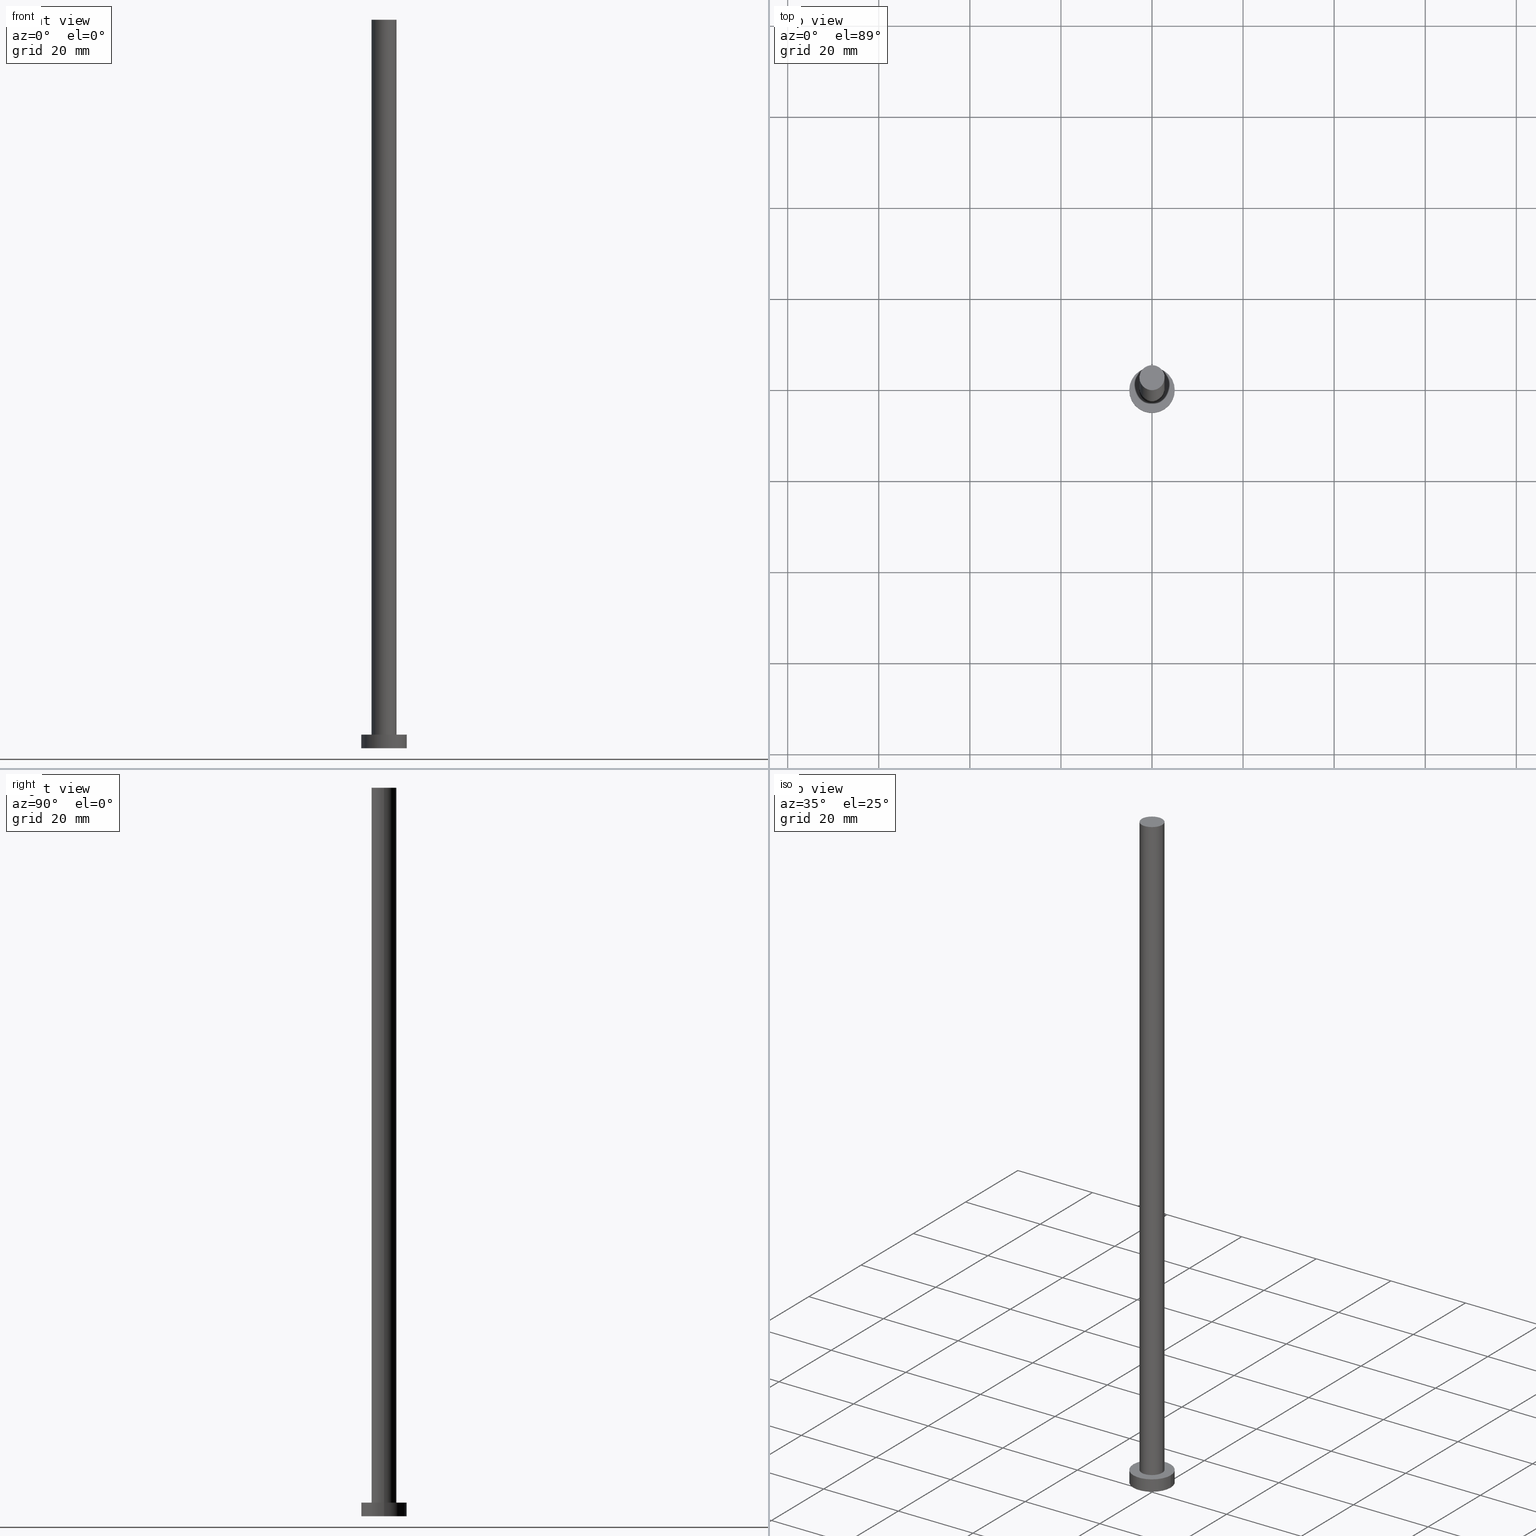
[diagram: canonical four-view strip — front | top / right | iso, engineering-drawing reading convention]
A machine part, canonical four-view strip (front | top / right | iso — engineering-drawing reading convention). The complete STEP part file that produces these views, byte-faithful:
ISO-10303-21;
HEADER;
FILE_DESCRIPTION (( 'STEP AP203' ),
    '1' );
FILE_NAME ('170a.STEP',
    '2023-02-13T14:34:03',
    ( '' ),
    ( '' ),
    'SwSTEP 2.0',
    'SolidWorks 2019',
    '' );
FILE_SCHEMA (( 'CONFIG_CONTROL_DESIGN' ));
ENDSEC;

DATA;
#1 = DIRECTION ( 'NONE',  ( 0.000000000000000000, 0.000000000000000000, 1.000000000000000000 ) ) ;
#2 = DIRECTION ( 'NONE',  ( 0.000000000000000000, 0.000000000000000000, 1.000000000000000000 ) ) ;
#3 = CC_DESIGN_DATE_AND_TIME_ASSIGNMENT ( #106, #11, ( #216 ) ) ;
#4 = EDGE_LOOP ( 'NONE', ( #43, #136 ) ) ;
#5 = CC_DESIGN_PERSON_AND_ORGANIZATION_ASSIGNMENT ( #44, #9, ( #216 ) ) ;
#6 = AXIS2_PLACEMENT_3D ( 'NONE', #91, #207, #252 ) ;
#7 = PERSON_AND_ORGANIZATION_ROLE ( 'design_supplier' ) ;
#8 = PERSON_AND_ORGANIZATION ( #135, #144 ) ;
#9 = PERSON_AND_ORGANIZATION_ROLE ( 'classification_officer' ) ;
#10 = ORIENTED_EDGE ( 'NONE', *, *, #114, .T. ) ;
#11 = DATE_TIME_ROLE ( 'classification_date' ) ;
#12 = ORIENTED_EDGE ( 'NONE', *, *, #46, .F. ) ;
#13 = PERSON_AND_ORGANIZATION_ROLE ( 'design_owner' ) ;
#14 = VERTEX_POINT ( 'NONE', #204 ) ;
#15 = VERTEX_POINT ( 'NONE', #51 ) ;
#16 = PERSON_AND_ORGANIZATION ( #135, #144 ) ;
#17 = ORIENTED_EDGE ( 'NONE', *, *, #250, .F. ) ;
#18 = CARTESIAN_POINT ( 'NONE',  ( 0.000000000000000000, 0.000000000000000000, 3.000000000000000000 ) ) ;
#19 = DIRECTION ( 'NONE',  ( 1.000000000000000000, 0.000000000000000000, 0.000000000000000000 ) ) ;
#20 = FACE_BOUND ( 'NONE', #4, .T. ) ;
#21 = FACE_OUTER_BOUND ( 'NONE', #189, .T. ) ;
#22 = DIRECTION ( 'NONE',  ( -0.000000000000000000, -0.000000000000000000, -1.000000000000000000 ) ) ;
#23 = CC_DESIGN_APPROVAL ( #85, ( #199 ) ) ;
#24 = APPROVAL ( #134, 'NEUR�EN�' ) ;
#25 = PERSON_AND_ORGANIZATION ( #135, #144 ) ;
#26 = DESIGN_CONTEXT ( 'detailed design', #84, 'design' ) ;
#27 = FACE_OUTER_BOUND ( 'NONE', #151, .T. ) ;
#28 = APPROVAL_STATUS ( 'not_yet_approved' ) ;
#29 = CARTESIAN_POINT ( 'NONE',  ( 0.000000000000000000, 0.000000000000000000, 160.0000000000000000 ) ) ;
#30 = APPROVAL_DATE_TIME ( #209, #85 ) ;
#31 = VECTOR ( 'NONE', #56, 1000.000000000000000 ) ;
#32 = CARTESIAN_POINT ( 'NONE',  ( -2.750000000000000000, 0.000000000000000000, 3.000000000000000000 ) ) ;
#33 = LOCAL_TIME ( 15, 34, 3.000000000000000000, #164 ) ;
#34 = DIRECTION ( 'NONE',  ( -0.000000000000000000, -0.000000000000000000, -1.000000000000000000 ) ) ;
#35 = PLANE ( 'NONE',  #243 ) ;
#36 = VECTOR ( 'NONE', #22, 1000.000000000000000 ) ;
#37 = DIRECTION ( 'NONE',  ( 0.000000000000000000, 0.000000000000000000, 1.000000000000000000 ) ) ;
#38 = DIRECTION ( 'NONE',  ( -0.000000000000000000, -0.000000000000000000, -1.000000000000000000 ) ) ;
#39 = ADVANCED_FACE ( 'NONE', ( #27 ), #133, .T. ) ;
#40 = CARTESIAN_POINT ( 'NONE',  ( 5.000000000000000000, 6.123233995736766282E-16, 0.000000000000000000 ) ) ;
#41 = ADVANCED_BREP_SHAPE_REPRESENTATION ( '170a', ( #161, #6 ), #63 ) ;
#42 = CC_DESIGN_PERSON_AND_ORGANIZATION_ASSIGNMENT ( #8, #7, ( #199 ) ) ;
#43 = ORIENTED_EDGE ( 'NONE', *, *, #240, .F. ) ;
#44 = PERSON_AND_ORGANIZATION ( #135, #144 ) ;
#45 = ORIENTED_EDGE ( 'NONE', *, *, #77, .T. ) ;
#46 = EDGE_CURVE ( 'NONE', #47, #146, #93, .T. ) ;
#47 = VERTEX_POINT ( 'NONE', #169 ) ;
#48 = DATE_AND_TIME ( #73, #155 ) ;
#49 = ORIENTED_EDGE ( 'NONE', *, *, #185, .T. ) ;
#50 = PERSON_AND_ORGANIZATION ( #135, #144 ) ;
#51 = CARTESIAN_POINT ( 'NONE',  ( 5.000000000000000000, 6.123233995736766282E-16, 3.000000000000000000 ) ) ;
#52 = APPLICATION_PROTOCOL_DEFINITION ( 'international standard', 'config_control_design', 1994, #84 ) ;
#53 = APPROVAL_PERSON_ORGANIZATION ( #154, #24, #68 ) ;
#54 = COORDINATED_UNIVERSAL_TIME_OFFSET ( 1, 0, .AHEAD. ) ;
#55 = DIRECTION ( 'NONE',  ( 0.000000000000000000, 0.000000000000000000, 1.000000000000000000 ) ) ;
#56 = DIRECTION ( 'NONE',  ( -0.000000000000000000, -0.000000000000000000, -1.000000000000000000 ) ) ;
#57 = FACE_OUTER_BOUND ( 'NONE', #165, .T. ) ;
#58 = LOCAL_TIME ( 15, 34, 3.000000000000000000, #148 ) ;
#59 = CARTESIAN_POINT ( 'NONE',  ( 0.000000000000000000, 0.000000000000000000, 0.000000000000000000 ) ) ;
#60 = DIRECTION ( 'NONE',  ( 1.000000000000000000, 0.000000000000000000, 0.000000000000000000 ) ) ;
#61 = SECURITY_CLASSIFICATION_LEVEL ( 'unclassified' ) ;
#62 = AXIS2_PLACEMENT_3D ( 'NONE', #251, #236, #78 ) ;
#63 =( GEOMETRIC_REPRESENTATION_CONTEXT ( 3 ) GLOBAL_UNCERTAINTY_ASSIGNED_CONTEXT ( ( #182 ) ) GLOBAL_UNIT_ASSIGNED_CONTEXT ( ( #174, #227, #187 ) ) REPRESENTATION_CONTEXT ( 'NONE', 'WORKASPACE' ) );
#64 = ORIENTED_EDGE ( 'NONE', *, *, #185, .F. ) ;
#65 = CALENDAR_DATE ( 2023, 13, 2 ) ;
#66 = CC_DESIGN_PERSON_AND_ORGANIZATION_ASSIGNMENT ( #16, #13, ( #238 ) ) ;
#67 = ORIENTED_EDGE ( 'NONE', *, *, #46, .T. ) ;
#68 = APPROVAL_ROLE ( '' ) ;
#69 = CALENDAR_DATE ( 2023, 13, 2 ) ;
#70 = CARTESIAN_POINT ( 'NONE',  ( -5.000000000000000000, 0.000000000000000000, 3.000000000000000000 ) ) ;
#71 = ORIENTED_EDGE ( 'NONE', *, *, #181, .F. ) ;
#72 = EDGE_CURVE ( 'NONE', #14, #228, #130, .T. ) ;
#73 = CALENDAR_DATE ( 2023, 13, 2 ) ;
#74 = AXIS2_PLACEMENT_3D ( 'NONE', #147, #206, #186 ) ;
#75 = CARTESIAN_POINT ( 'NONE',  ( 0.000000000000000000, 0.000000000000000000, 160.0000000000000000 ) ) ;
#76 = CARTESIAN_POINT ( 'NONE',  ( 0.000000000000000000, 0.000000000000000000, 160.0000000000000000 ) ) ;
#77 = EDGE_CURVE ( 'NONE', #146, #104, #241, .T. ) ;
#78 = DIRECTION ( 'NONE',  ( 1.000000000000000000, 0.000000000000000000, 0.000000000000000000 ) ) ;
#79 = VECTOR ( 'NONE', #248, 1000.000000000000000 ) ;
#80 = DIRECTION ( 'NONE',  ( 1.000000000000000000, 0.000000000000000000, -0.000000000000000000 ) ) ;
#81 = FACE_OUTER_BOUND ( 'NONE', #149, .T. ) ;
#82 = EDGE_LOOP ( 'NONE', ( #110, #88, #168, #246 ) ) ;
#83 = CALENDAR_DATE ( 2023, 13, 2 ) ;
#84 = APPLICATION_CONTEXT ( 'configuration controlled 3d designs of mechanical parts and assemblies' ) ;
#85 = APPROVAL ( #28, 'NEUR�EN�' ) ;
#86 = AXIS2_PLACEMENT_3D ( 'NONE', #101, #103, #60 ) ;
#87 = LOCAL_TIME ( 15, 34, 3.000000000000000000, #247 ) ;
#88 = ORIENTED_EDGE ( 'NONE', *, *, #145, .F. ) ;
#89 = VERTEX_POINT ( 'NONE', #210 ) ;
#90 = APPROVAL_ROLE ( '' ) ;
#91 = CARTESIAN_POINT ( 'NONE',  ( 0.000000000000000000, 0.000000000000000000, 0.000000000000000000 ) ) ;
#92 = CC_DESIGN_APPROVAL ( #215, ( #216 ) ) ;
#93 = LINE ( 'NONE', #115, #153 ) ;
#94 = CC_DESIGN_PERSON_AND_ORGANIZATION_ASSIGNMENT ( #113, #190, ( #199 ) ) ;
#95 = DIRECTION ( 'NONE',  ( 0.000000000000000000, 0.000000000000000000, 1.000000000000000000 ) ) ;
#96 = APPLICATION_CONTEXT ( 'configuration controlled 3d designs of mechanical parts and assemblies' ) ;
#97 = CARTESIAN_POINT ( 'NONE',  ( 0.000000000000000000, 0.000000000000000000, 160.0000000000000000 ) ) ;
#98 = CYLINDRICAL_SURFACE ( 'NONE', #167, 2.750000000000000000 ) ;
#99 = CC_DESIGN_PERSON_AND_ORGANIZATION_ASSIGNMENT ( #150, #234, ( #242 ) ) ;
#100 = DIRECTION ( 'NONE',  ( -1.000000000000000000, 0.000000000000000000, 0.000000000000000000 ) ) ;
#101 = CARTESIAN_POINT ( 'NONE',  ( 0.000000000000000000, 0.000000000000000000, 3.000000000000000000 ) ) ;
#102 = AXIS2_PLACEMENT_3D ( 'NONE', #138, #2, #139 ) ;
#103 = DIRECTION ( 'NONE',  ( 0.000000000000000000, 0.000000000000000000, 1.000000000000000000 ) ) ;
#104 = VERTEX_POINT ( 'NONE', #32 ) ;
#105 = APPROVAL_PERSON_ORGANIZATION ( #25, #215, #125 ) ;
#106 = DATE_AND_TIME ( #65, #87 ) ;
#107 = CIRCLE ( 'NONE', #102, 5.000000000000000000 ) ;
#108 = ORIENTED_EDGE ( 'NONE', *, *, #121, .T. ) ;
#109 = DIRECTION ( 'NONE',  ( 0.000000000000000000, 0.000000000000000000, 1.000000000000000000 ) ) ;
#110 = ORIENTED_EDGE ( 'NONE', *, *, #122, .F. ) ;
#111 = MECHANICAL_CONTEXT ( 'NONE', #96, 'mechanical' ) ;
#112 = DIRECTION ( 'NONE',  ( 1.000000000000000000, 0.000000000000000000, -0.000000000000000000 ) ) ;
#113 = PERSON_AND_ORGANIZATION ( #135, #144 ) ;
#114 = EDGE_CURVE ( 'NONE', #89, #47, #126, .T. ) ;
#115 = CARTESIAN_POINT ( 'NONE',  ( 2.750000000000000000, 3.367778697655221012E-16, 160.0000000000000000 ) ) ;
#116 = DIRECTION ( 'NONE',  ( -0.000000000000000000, -0.000000000000000000, -1.000000000000000000 ) ) ;
#117 = CARTESIAN_POINT ( 'NONE',  ( 0.000000000000000000, 0.000000000000000000, 3.000000000000000000 ) ) ;
#118 = DIRECTION ( 'NONE',  ( 0.000000000000000000, 0.000000000000000000, 1.000000000000000000 ) ) ;
#119 = DIRECTION ( 'NONE',  ( 1.000000000000000000, 0.000000000000000000, -0.000000000000000000 ) ) ;
#120 = CARTESIAN_POINT ( 'NONE',  ( 0.000000000000000000, 0.000000000000000000, 3.000000000000000000 ) ) ;
#121 = EDGE_CURVE ( 'NONE', #223, #228, #221, .T. ) ;
#122 = EDGE_CURVE ( 'NONE', #15, #223, #176, .T. ) ;
#123 = APPROVAL_DATE_TIME ( #202, #215 ) ;
#124 = CC_DESIGN_APPROVAL ( #24, ( #242 ) ) ;
#125 = APPROVAL_ROLE ( '' ) ;
#126 = CIRCLE ( 'NONE', #253, 2.750000000000000000 ) ;
#127 = AXIS2_PLACEMENT_3D ( 'NONE', #59, #1, #80 ) ;
#128 = ORIENTED_EDGE ( 'NONE', *, *, #201, .F. ) ;
#129 = APPROVAL_STATUS ( 'not_yet_approved' ) ;
#130 = LINE ( 'NONE', #70, #79 ) ;
#131 = ADVANCED_FACE ( 'NONE', ( #20, #140 ), #35, .T. ) ;
#132 = CALENDAR_DATE ( 2023, 13, 2 ) ;
#133 = PLANE ( 'NONE',  #232 ) ;
#134 = APPROVAL_STATUS ( 'not_yet_approved' ) ;
#135 = PERSON ( 'NEUR�EN�', 'NEUR�EN�', 'NEUR�EN�', ('NEUR�EN�'), ('NEUR�EN�'), ('NEUR�EN�') ) ;
#136 = ORIENTED_EDGE ( 'NONE', *, *, #77, .F. ) ;
#137 = DATE_AND_TIME ( #69, #163 ) ;
#138 = CARTESIAN_POINT ( 'NONE',  ( 0.000000000000000000, 0.000000000000000000, 3.000000000000000000 ) ) ;
#139 = DIRECTION ( 'NONE',  ( 1.000000000000000000, 0.000000000000000000, 0.000000000000000000 ) ) ;
#140 = FACE_OUTER_BOUND ( 'NONE', #183, .T. ) ;
#141 = CARTESIAN_POINT ( 'NONE',  ( -5.000000000000000000, 0.000000000000000000, 0.000000000000000000 ) ) ;
#142 = CC_DESIGN_DATE_AND_TIME_ASSIGNMENT ( #137, #229, ( #242 ) ) ;
#143 = ADVANCED_FACE ( 'NONE', ( #177 ), #178, .T. ) ;
#144 = ORGANIZATION ( 'NEUR�EN�', 'NEUR�EN�', '' ) ;
#145 = EDGE_CURVE ( 'NONE', #14, #15, #107, .T. ) ;
#146 = VERTEX_POINT ( 'NONE', #213 ) ;
#147 = CARTESIAN_POINT ( 'NONE',  ( 0.000000000000000000, 0.000000000000000000, 3.000000000000000000 ) ) ;
#148 = COORDINATED_UNIVERSAL_TIME_OFFSET ( 1, 0, .AHEAD. ) ;
#149 = EDGE_LOOP ( 'NONE', ( #64, #208, #108, #233 ) ) ;
#150 = PERSON_AND_ORGANIZATION ( #135, #144 ) ;
#151 = EDGE_LOOP ( 'NONE', ( #10, #225 ) ) ;
#152 = ORIENTED_EDGE ( 'NONE', *, *, #240, .T. ) ;
#153 = VECTOR ( 'NONE', #184, 1000.000000000000000 ) ;
#154 = PERSON_AND_ORGANIZATION ( #135, #144 ) ;
#155 = LOCAL_TIME ( 15, 34, 3.000000000000000000, #192 ) ;
#156 = DIRECTION ( 'NONE',  ( -0.000000000000000000, -0.000000000000000000, -1.000000000000000000 ) ) ;
#157 = ADVANCED_FACE ( 'NONE', ( #81 ), #254, .T. ) ;
#158 = AXIS2_PLACEMENT_3D ( 'NONE', #120, #37, #179 ) ;
#159 = PLANE ( 'NONE',  #127 ) ;
#160 = ADVANCED_FACE ( 'NONE', ( #57 ), #217, .T. ) ;
#161 = MANIFOLD_SOLID_BREP ( 'P�idat vysunut�m3', #188 ) ;
#162 = CIRCLE ( 'NONE', #180, 5.000000000000000000 ) ;
#163 = LOCAL_TIME ( 15, 34, 3.000000000000000000, #54 ) ;
#164 = COORDINATED_UNIVERSAL_TIME_OFFSET ( 1, 0, .AHEAD. ) ;
#165 = EDGE_LOOP ( 'NONE', ( #12, #172, #170, #152 ) ) ;
#166 = PRODUCT_RELATED_PRODUCT_CATEGORY ( 'detail', '', ( #238 ) ) ;
#167 = AXIS2_PLACEMENT_3D ( 'NONE', #76, #116, #194 ) ;
#168 = ORIENTED_EDGE ( 'NONE', *, *, #72, .T. ) ;
#169 = CARTESIAN_POINT ( 'NONE',  ( 2.750000000000000000, 3.367778697655221012E-16, 160.0000000000000000 ) ) ;
#170 = ORIENTED_EDGE ( 'NONE', *, *, #181, .T. ) ;
#171 = APPROVAL_DATE_TIME ( #48, #24 ) ;
#172 = ORIENTED_EDGE ( 'NONE', *, *, #114, .F. ) ;
#173 = DIRECTION ( 'NONE',  ( 1.000000000000000000, 0.000000000000000000, 0.000000000000000000 ) ) ;
#174 =( LENGTH_UNIT ( ) NAMED_UNIT ( * ) SI_UNIT ( .MILLI., .METRE. ) );
#175 = DIRECTION ( 'NONE',  ( 1.000000000000000000, 0.000000000000000000, 0.000000000000000000 ) ) ;
#176 = LINE ( 'NONE', #255, #31 ) ;
#177 = FACE_OUTER_BOUND ( 'NONE', #82, .T. ) ;
#178 = CYLINDRICAL_SURFACE ( 'NONE', #219, 5.000000000000000000 ) ;
#179 = DIRECTION ( 'NONE',  ( 1.000000000000000000, 0.000000000000000000, 0.000000000000000000 ) ) ;
#180 = AXIS2_PLACEMENT_3D ( 'NONE', #211, #214, #19 ) ;
#181 = EDGE_CURVE ( 'NONE', #89, #104, #197, .T. ) ;
#182 = UNCERTAINTY_MEASURE_WITH_UNIT (LENGTH_MEASURE( 1.000000000000000082E-05 ), #174, 'distance_accuracy_value', 'NONE');
#183 = EDGE_LOOP ( 'NONE', ( #203, #49 ) ) ;
#184 = DIRECTION ( 'NONE',  ( -0.000000000000000000, -0.000000000000000000, -1.000000000000000000 ) ) ;
#185 = EDGE_CURVE ( 'NONE', #15, #14, #198, .T. ) ;
#186 = DIRECTION ( 'NONE',  ( 1.000000000000000000, 0.000000000000000000, 0.000000000000000000 ) ) ;
#187 =( NAMED_UNIT ( * ) SI_UNIT ( $, .STERADIAN. ) SOLID_ANGLE_UNIT ( ) );
#188 = CLOSED_SHELL ( 'NONE', ( #231, #157, #143, #131, #193, #160, #39 ) ) ;
#189 = EDGE_LOOP ( 'NONE', ( #128, #249 ) ) ;
#190 = PERSON_AND_ORGANIZATION_ROLE ( 'creator' ) ;
#191 = CARTESIAN_POINT ( 'NONE',  ( 0.000000000000000000, 0.000000000000000000, 160.0000000000000000 ) ) ;
#192 = COORDINATED_UNIVERSAL_TIME_OFFSET ( 1, 0, .AHEAD. ) ;
#193 = ADVANCED_FACE ( 'NONE', ( #21 ), #159, .F. ) ;
#194 = DIRECTION ( 'NONE',  ( -1.000000000000000000, 0.000000000000000000, 0.000000000000000000 ) ) ;
#195 = DIRECTION ( 'NONE',  ( -1.000000000000000000, 0.000000000000000000, 0.000000000000000000 ) ) ;
#196 = CIRCLE ( 'NONE', #226, 2.750000000000000000 ) ;
#197 = LINE ( 'NONE', #237, #36 ) ;
#198 = CIRCLE ( 'NONE', #86, 5.000000000000000000 ) ;
#199 = PRODUCT_DEFINITION_FORMATION_WITH_SPECIFIED_SOURCE ( 'LIBOVOLN�', '', #238, .NOT_KNOWN. ) ;
#200 = APPROVAL_PERSON_ORGANIZATION ( #50, #85, #90 ) ;
#201 = EDGE_CURVE ( 'NONE', #228, #223, #162, .T. ) ;
#202 = DATE_AND_TIME ( #83, #33 ) ;
#203 = ORIENTED_EDGE ( 'NONE', *, *, #145, .T. ) ;
#204 = CARTESIAN_POINT ( 'NONE',  ( -5.000000000000000000, 0.000000000000000000, 3.000000000000000000 ) ) ;
#205 = SHAPE_DEFINITION_REPRESENTATION ( #222, #41 ) ;
#206 = DIRECTION ( 'NONE',  ( 0.000000000000000000, 0.000000000000000000, 1.000000000000000000 ) ) ;
#207 = DIRECTION ( 'NONE',  ( 0.000000000000000000, 0.000000000000000000, 1.000000000000000000 ) ) ;
#208 = ORIENTED_EDGE ( 'NONE', *, *, #122, .T. ) ;
#209 = DATE_AND_TIME ( #132, #58 ) ;
#210 = CARTESIAN_POINT ( 'NONE',  ( -2.750000000000000000, 0.000000000000000000, 160.0000000000000000 ) ) ;
#211 = CARTESIAN_POINT ( 'NONE',  ( 0.000000000000000000, 0.000000000000000000, 0.000000000000000000 ) ) ;
#212 = APPLICATION_PROTOCOL_DEFINITION ( 'international standard', 'config_control_design', 1994, #96 ) ;
#213 = CARTESIAN_POINT ( 'NONE',  ( 2.750000000000000000, 3.367778697655221012E-16, 3.000000000000000000 ) ) ;
#214 = DIRECTION ( 'NONE',  ( 0.000000000000000000, 0.000000000000000000, 1.000000000000000000 ) ) ;
#215 = APPROVAL ( #129, 'NEUR�EN�' ) ;
#216 = SECURITY_CLASSIFICATION ( '', '', #61 ) ;
#217 = CYLINDRICAL_SURFACE ( 'NONE', #244, 2.750000000000000000 ) ;
#218 = FACE_OUTER_BOUND ( 'NONE', #230, .T. ) ;
#219 = AXIS2_PLACEMENT_3D ( 'NONE', #18, #156, #100 ) ;
#220 = CC_DESIGN_SECURITY_CLASSIFICATION ( #216, ( #199 ) ) ;
#221 = CIRCLE ( 'NONE', #62, 5.000000000000000000 ) ;
#222 = PRODUCT_DEFINITION_SHAPE ( 'NONE', 'NONE',  #242 ) ;
#223 = VERTEX_POINT ( 'NONE', #40 ) ;
#224 = AXIS2_PLACEMENT_3D ( 'NONE', #117, #34, #195 ) ;
#225 = ORIENTED_EDGE ( 'NONE', *, *, #250, .T. ) ;
#226 = AXIS2_PLACEMENT_3D ( 'NONE', #97, #118, #175 ) ;
#227 =( NAMED_UNIT ( * ) PLANE_ANGLE_UNIT ( ) SI_UNIT ( $, .RADIAN. ) );
#228 = VERTEX_POINT ( 'NONE', #141 ) ;
#229 = DATE_TIME_ROLE ( 'creation_date' ) ;
#230 = EDGE_LOOP ( 'NONE', ( #17, #67, #45, #71 ) ) ;
#231 = ADVANCED_FACE ( 'NONE', ( #218 ), #98, .T. ) ;
#232 = AXIS2_PLACEMENT_3D ( 'NONE', #29, #109, #112 ) ;
#233 = ORIENTED_EDGE ( 'NONE', *, *, #72, .F. ) ;
#234 = PERSON_AND_ORGANIZATION_ROLE ( 'creator' ) ;
#235 = CARTESIAN_POINT ( 'NONE',  ( 0.000000000000000000, 0.000000000000000000, 3.000000000000000000 ) ) ;
#236 = DIRECTION ( 'NONE',  ( 0.000000000000000000, 0.000000000000000000, 1.000000000000000000 ) ) ;
#237 = CARTESIAN_POINT ( 'NONE',  ( -2.750000000000000000, 0.000000000000000000, 160.0000000000000000 ) ) ;
#238 = PRODUCT ( '170a', '170a', '', ( #111 ) ) ;
#239 = DIRECTION ( 'NONE',  ( -1.000000000000000000, 0.000000000000000000, 0.000000000000000000 ) ) ;
#240 = EDGE_CURVE ( 'NONE', #104, #146, #245, .T. ) ;
#241 = CIRCLE ( 'NONE', #74, 2.750000000000000000 ) ;
#242 = PRODUCT_DEFINITION ( 'NEZN�M�', '', #199, #26 ) ;
#243 = AXIS2_PLACEMENT_3D ( 'NONE', #235, #55, #119 ) ;
#244 = AXIS2_PLACEMENT_3D ( 'NONE', #75, #38, #239 ) ;
#245 = CIRCLE ( 'NONE', #158, 2.750000000000000000 ) ;
#246 = ORIENTED_EDGE ( 'NONE', *, *, #201, .T. ) ;
#247 = COORDINATED_UNIVERSAL_TIME_OFFSET ( 1, 0, .AHEAD. ) ;
#248 = DIRECTION ( 'NONE',  ( -0.000000000000000000, -0.000000000000000000, -1.000000000000000000 ) ) ;
#249 = ORIENTED_EDGE ( 'NONE', *, *, #121, .F. ) ;
#250 = EDGE_CURVE ( 'NONE', #47, #89, #196, .T. ) ;
#251 = CARTESIAN_POINT ( 'NONE',  ( 0.000000000000000000, 0.000000000000000000, 0.000000000000000000 ) ) ;
#252 = DIRECTION ( 'NONE',  ( 1.000000000000000000, 0.000000000000000000, 0.000000000000000000 ) ) ;
#253 = AXIS2_PLACEMENT_3D ( 'NONE', #191, #95, #173 ) ;
#254 = CYLINDRICAL_SURFACE ( 'NONE', #224, 5.000000000000000000 ) ;
#255 = CARTESIAN_POINT ( 'NONE',  ( 5.000000000000000000, 6.123233995736766282E-16, 3.000000000000000000 ) ) ;
ENDSEC;
END-ISO-10303-21;
